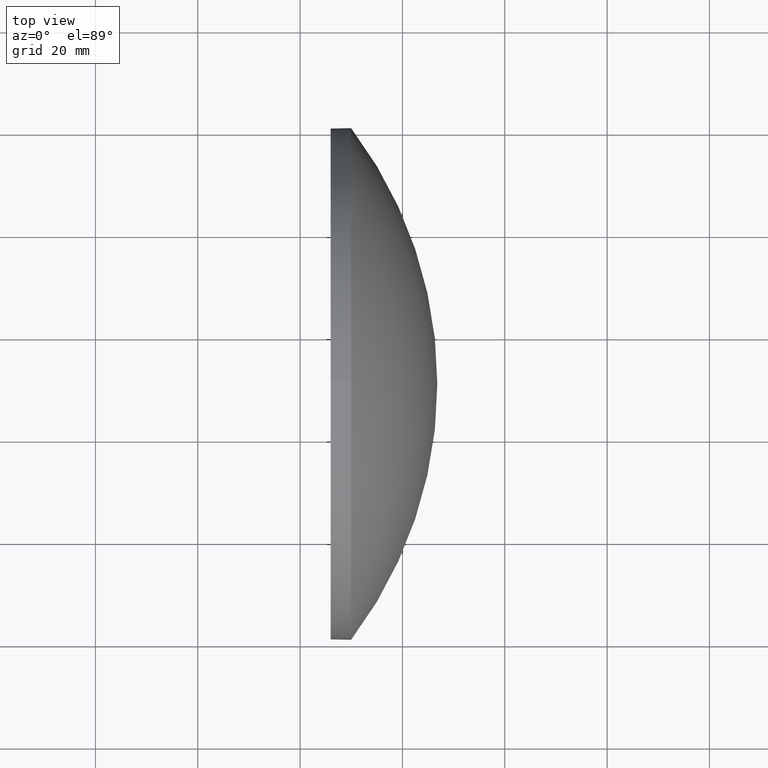
[diagram: clean part render]
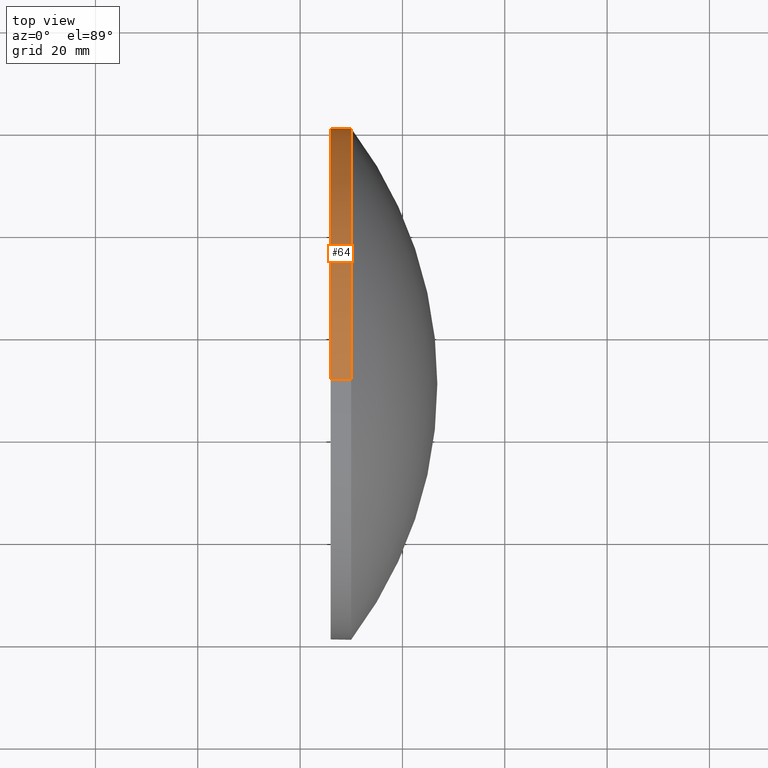
[diagram: same view with one face highlighted and labeled with its STEP entity id]
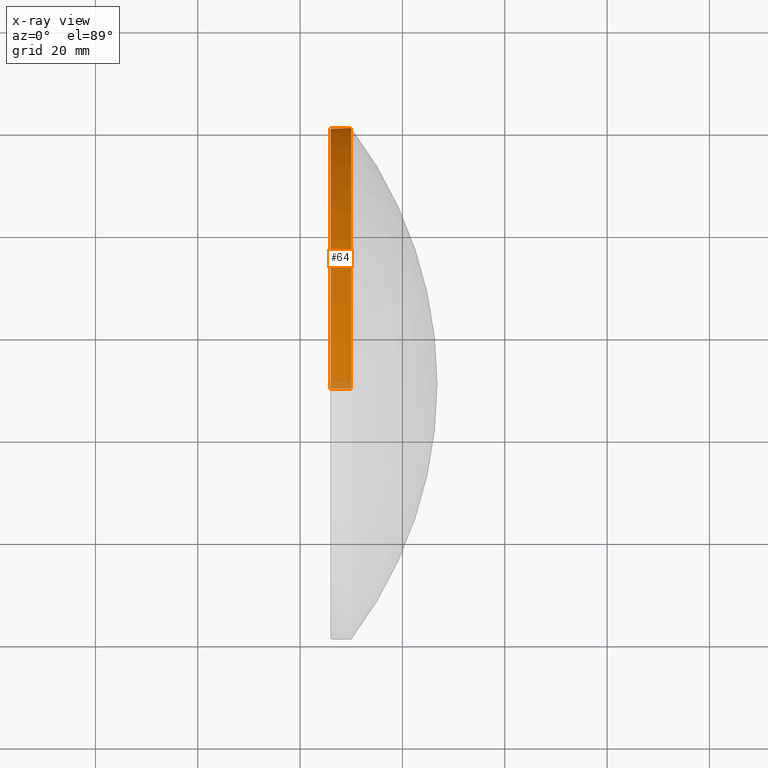
[diagram: x-ray of the same camera — body ghosted, the highlighted face saturated]
A machine part, top view. The second image highlights one B-rep face of the part: STEP entity #64.
The next image is the same camera in x-ray: the body ghosted, the highlighted face saturated — about 3% of this face is hidden behind the body in this view.
In plain terms, the highlighted cylindrical surface (partial cylindrical patch) has radius 50 mm, axis along (-1, -0, -0).
Its self-contained STEP definition (entity closure, byte-faithful):
#1 = CARTESIAN_POINT ( 'NONE',  ( 229.9713472661685500, 130.4671098528244200, 0.0000000000000000000 ) ) ;
#8 = ORIENTED_EDGE ( 'NONE', *, *, #32, .F. ) ;
#15 = CIRCLE ( 'NONE', #55, 50.00000000000001400 ) ;
#16 = CYLINDRICAL_SURFACE ( 'NONE', #139, 50.00000000000001400 ) ;
#18 = CARTESIAN_POINT ( 'NONE',  ( 217.9945825323866300, 130.4671098528244200, 0.0000000000000000000 ) ) ;
#21 = CARTESIAN_POINT ( 'NONE',  ( 229.9713472661685500, 130.4671098528244200, 50.00000000000001400 ) ) ;
#23 = DIRECTION ( 'NONE',  ( 0.0000000000000000000, 0.0000000000000000000, 1.000000000000000000 ) ) ;
#27 = LINE ( 'NONE', #184, #185 ) ;
#32 = EDGE_CURVE ( 'NONE', #165, #167, #152, .T. ) ;
#34 = CIRCLE ( 'NONE', #53, 50.00000000000001400 ) ;
#38 = CARTESIAN_POINT ( 'NONE',  ( 229.9713472661685500, 180.4671098528244500, 0.0000000000000000000 ) ) ;
#40 = DIRECTION ( 'NONE',  ( -1.000000000000000000, -0.0000000000000000000, -0.0000000000000000000 ) ) ;
#44 = CIRCLE ( 'NONE', #121, 50.00000000000001400 ) ;
#53 = AXIS2_PLACEMENT_3D ( 'NONE', #1, #94, #23 ) ;
#54 = DIRECTION ( 'NONE',  ( -1.000000000000000000, -0.0000000000000000000, -0.0000000000000000000 ) ) ;
#55 = AXIS2_PLACEMENT_3D ( 'NONE', #120, #72, #171 ) ;
#56 = CARTESIAN_POINT ( 'NONE',  ( 225.9713472661685500, 130.4671098528244200, -50.00000000000001400 ) ) ;
#64 = ADVANCED_FACE ( 'NONE', ( #105 ), #16, .T. ) ;
#72 = DIRECTION ( 'NONE',  ( -1.000000000000000000, -0.0000000000000000000, -0.0000000000000000000 ) ) ;
#76 = CARTESIAN_POINT ( 'NONE',  ( 225.9713472661685500, 130.4671098528244200, 0.0000000000000000000 ) ) ;
#85 = DIRECTION ( 'NONE',  ( -1.000000000000000000, -0.0000000000000000000, -0.0000000000000000000 ) ) ;
#86 = CARTESIAN_POINT ( 'NONE',  ( 217.9945825323866300, 130.4671098528244200, 50.00000000000001400 ) ) ;
#90 = ORIENTED_EDGE ( 'NONE', *, *, #109, .T. ) ;
#94 = DIRECTION ( 'NONE',  ( -1.000000000000000000, -0.0000000000000000000, -0.0000000000000000000 ) ) ;
#95 = VERTEX_POINT ( 'NONE', #56 ) ;
#96 = DIRECTION ( 'NONE',  ( -1.000000000000000000, -0.0000000000000000000, -0.0000000000000000000 ) ) ;
#102 = DIRECTION ( 'NONE',  ( 0.0000000000000000000, 0.0000000000000000000, 1.000000000000000000 ) ) ;
#105 = FACE_OUTER_BOUND ( 'NONE', #138, .T. ) ;
#108 = ORIENTED_EDGE ( 'NONE', *, *, #174, .F. ) ;
#109 = EDGE_CURVE ( 'NONE', #179, #95, #27, .T. ) ;
#120 = CARTESIAN_POINT ( 'NONE',  ( 229.9713472661685500, 130.4671098528244200, 0.0000000000000000000 ) ) ;
#121 = AXIS2_PLACEMENT_3D ( 'NONE', #76, #40, #143 ) ;
#132 = CARTESIAN_POINT ( 'NONE',  ( 229.9713472661685500, 130.4671098528244200, -50.00000000000001400 ) ) ;
#134 = ORIENTED_EDGE ( 'NONE', *, *, #151, .T. ) ;
#137 = VERTEX_POINT ( 'NONE', #38 ) ;
#138 = EDGE_LOOP ( 'NONE', ( #176, #90, #108, #8, #134 ) ) ;
#139 = AXIS2_PLACEMENT_3D ( 'NONE', #18, #54, #102 ) ;
#143 = DIRECTION ( 'NONE',  ( 0.0000000000000000000, 0.0000000000000000000, 1.000000000000000000 ) ) ;
#150 = VECTOR ( 'NONE', #85, 1000.000000000000000 ) ;
#151 = EDGE_CURVE ( 'NONE', #165, #137, #34, .T. ) ;
#152 = LINE ( 'NONE', #86, #150 ) ;
#157 = CARTESIAN_POINT ( 'NONE',  ( 225.9713472661685500, 130.4671098528244200, 50.00000000000001400 ) ) ;
#165 = VERTEX_POINT ( 'NONE', #21 ) ;
#167 = VERTEX_POINT ( 'NONE', #157 ) ;
#171 = DIRECTION ( 'NONE',  ( 0.0000000000000000000, 0.0000000000000000000, 1.000000000000000000 ) ) ;
#174 = EDGE_CURVE ( 'NONE', #167, #95, #44, .T. ) ;
#176 = ORIENTED_EDGE ( 'NONE', *, *, #181, .T. ) ;
#179 = VERTEX_POINT ( 'NONE', #132 ) ;
#181 = EDGE_CURVE ( 'NONE', #137, #179, #15, .T. ) ;
#184 = CARTESIAN_POINT ( 'NONE',  ( 217.9945825323866300, 130.4671098528244200, -50.00000000000001400 ) ) ;
#185 = VECTOR ( 'NONE', #96, 1000.000000000000000 ) ;